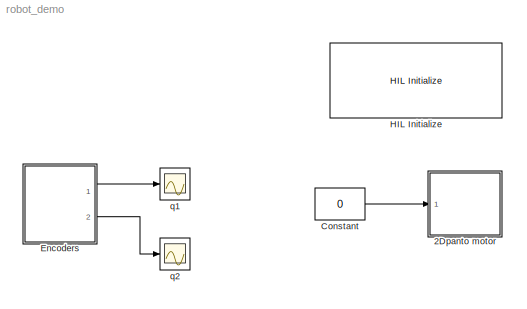
MODEL robot_demo
KIND model
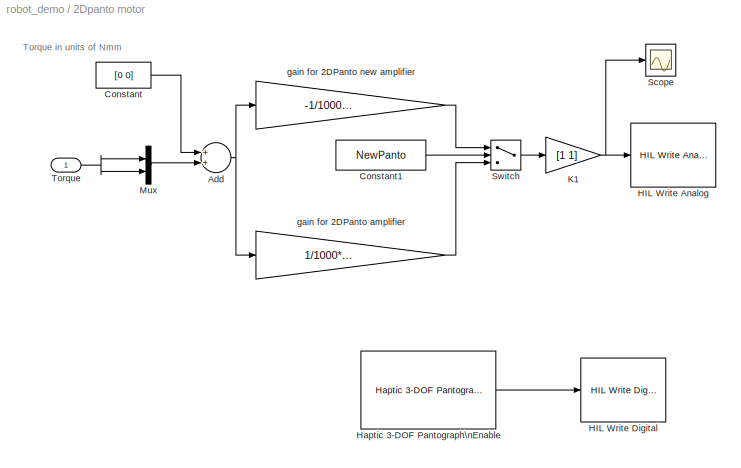
BLOCK [SubSystem] 2Dpanto motor
  FunctionWithSeparateData = off
  MaskHideContents = off
  MinAlgLoopOccurrences = off
  Opaque = off
  Ports = [1]
  PropExecContextOutsideSubsystem = off
  RTWSystemCode = Auto
  RequestExecContextInheritance = off
  SID = 1
BLOCK [Sum] 2Dpanto motor/Add
  InputSameDT = off
  OutDataTypeStr = Inherit: Inherit via internal rule
  Ports = [2, 1]
  SID = 4
  SaturateOnIntegerOverflow = off
BLOCK [Constant] 2Dpanto motor/Constant
  SID = 5
  Value = [0 0]
BLOCK [Constant] 2Dpanto motor/Constant1
  SID = 6
  Value = NewPanto
BLOCK [Reference] 2Dpanto motor/HIL Write Analog  REF=quarc_library/Data Acquisition/Generic/Immediate I//O/HIL Write Analog
  AttributesFormatString = (%<object_name>)
  Ports = [1]
  SID = 7
  SourceBlock = quarc_library/Data Acquisition/Generic/Immediate I//O/HIL Write Analog
  SourceType = HIL Write Analog
  UserData = DataTag0
  UserDataPersistent = on
  active = off
  channels = 0:1
  object_name = HIL-2
  sample_time = -1
  vector_input = on
BLOCK [Reference] 2Dpanto motor/HIL Write Digital  REF=quarc_library/Data Acquisition/Generic/Immediate I//O/HIL Write Digital
  AttributesFormatString = (%<object_name>)
  Ports = [1]
  SID = 61
  SourceBlock = quarc_library/Data Acquisition/Generic/Immediate I//O/HIL Write Digital
  SourceType = HIL Write Digital
  UserData = DataTag1
  UserDataPersistent = on
  active = off
  channels = 0:3
  object_name = HIL-2
  sample_time = -1
  vector_input = on
BLOCK [Reference] 2Dpanto motor/Haptic 3-DOF Pantograph\nEnable  REF=quarc_library/Devices/Quanser/Haptics/Pantographs/Haptic 3-DOF\nPlanar Pantograph/Interfacing/Haptic 3-DOF Pantograph\nEnable
  Ports = [0, 1]
  SID = 62
  SourceBlock = quarc_library/Devices/Quanser/Haptics/Pantographs/Haptic 3-DOF\nPlanar Pantograph/Interfacing/Haptic 3-DOF Pantograph\nEnable
  SourceType = Haptic 3-DOF Pantograph Enable
BLOCK [Gain] 2Dpanto motor/K1
  Gain = [1 1]
  OutDataTypeStr = Inherit: Inherit via internal rule
  ParamDataTypeStr = Inherit: Inherit via internal rule
  SID = 8
  SaturateOnIntegerOverflow = off
BLOCK [Mux] 2Dpanto motor/Mux
  DisplayOption = bar
  Inputs = 2
  Ports = [2, 1]
  SID = 58
BLOCK [Scope] 2Dpanto motor/Scope
  DataFormat = StructureWithTime
  Floating = off
  NumInputPorts = 1
  Ports = [1]
  SID = 63
  SampleTime = 0
  SaveName = ScopeData2
BLOCK [Switch] 2Dpanto motor/Switch
  Criteria = u2 > Threshold
  InputSameDT = off
  SID = 10
  SaturateOnIntegerOverflow = off
BLOCK [Inport] 2Dpanto motor/Torque
  IconDisplay = Port number
  SID = 2
BLOCK [Gain] 2Dpanto motor/gain for 2DPanto amplifier
  Gain = 1/1000*2.17/4.9
  OutDataTypeStr = Inherit: Inherit via internal rule
  ParamDataTypeStr = Inherit: Inherit via internal rule
  SID = 12
  SaturateOnIntegerOverflow = off
BLOCK [Gain] 2Dpanto motor/gain for 2DPanto new amplifier
  Gain = -1/1000*4*2.17/4.9
  OutDataTypeStr = Inherit: Inherit via internal rule
  ParamDataTypeStr = Inherit: Inherit via internal rule
  SID = 13
  SaturateOnIntegerOverflow = off
BLOCK [Constant] Constant
  SID = 14
  Value = 0
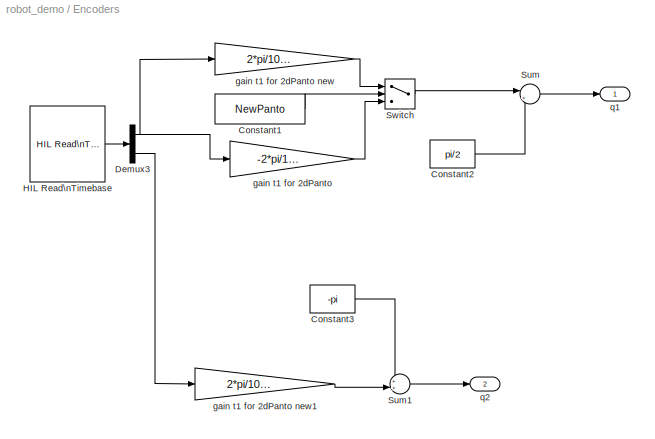
BLOCK [SubSystem] Encoders
  FunctionWithSeparateData = off
  MaskHideContents = off
  MinAlgLoopOccurrences = off
  Opaque = off
  Ports = [0, 2]
  PropExecContextOutsideSubsystem = off
  RTWSystemCode = Auto
  RequestExecContextInheritance = off
  SID = 16
BLOCK [Constant] Encoders/Constant1
  SID = 19
  Value = NewPanto
BLOCK [Constant] Encoders/Constant2
  SID = 68
  Value = pi/2
BLOCK [Constant] Encoders/Constant3
  SID = 70
  Value = -pi
BLOCK [Demux] Encoders/Demux3
  DisplayOption = bar
  Outputs = 3
  Ports = [1, 3]
  SID = 21
BLOCK [Reference] Encoders/HIL Read\nTimebase  REF=quarc_library/Data Acquisition/Generic/Timebases/HIL Read\nTimebase
  AttributesFormatString = (%<object_name>)
  Ports = [0, 1]
  SID = 22
  SourceBlock = quarc_library/Data Acquisition/Generic/Timebases/HIL Read\nTimebase
  SourceType = HIL Read Timebase
  UserData = DataTag2
  UserDataPersistent = on
  active = on
  analog_channels = []
  clock = 0
  data_type_mode = Inherit via back propagation
  digital_channels = []
  digital_data_type = boolean
  encoder_channels = [0:2]
  encoder_data_type = double
  object_name = HIL-2
  other_channels = []
  samples_in_buffer = max(ceil(1/qc_get_step_size), 1)
  vector_output = on
BLOCK [Sum] Encoders/Sum
  IconShape = round
  InputSameDT = off
  Inputs = |++
  OutDataTypeStr = Inherit: Inherit via internal rule
  Ports = [2, 1]
  SID = 67
  SaturateOnIntegerOverflow = off
BLOCK [Sum] Encoders/Sum1
  IconShape = round
  InputSameDT = off
  Inputs = ++|
  OutDataTypeStr = Inherit: Inherit via internal rule
  Ports = [2, 1]
  SID = 69
  SaturateOnIntegerOverflow = off
BLOCK [Switch] Encoders/Switch
  Criteria = u2 > Threshold
  InputSameDT = off
  SID = 25
  SaturateOnIntegerOverflow = off
BLOCK [Gain] Encoders/gain t1 for 2dPanto
  Gain = -2*pi/1024/75
  OutDataTypeStr = Inherit: Inherit via internal rule
  ParamDataTypeStr = Inherit: Inherit via internal rule
  SID = 27
  SaturateOnIntegerOverflow = off
BLOCK [Gain] Encoders/gain t1 for 2dPanto new
  Gain = 2*pi/1024/75
  OutDataTypeStr = Inherit: Inherit via internal rule
  ParamDataTypeStr = Inherit: Inherit via internal rule
  SID = 28
  SaturateOnIntegerOverflow = off
BLOCK [Gain] Encoders/gain t1 for 2dPanto new1
  Gain = 2*pi/1000/10
  OutDataTypeStr = Inherit: Inherit via internal rule
  ParamDataTypeStr = Inherit: Inherit via internal rule
  SID = 66
  SaturateOnIntegerOverflow = off
BLOCK [Outport] Encoders/q1
  IconDisplay = Port number
  SID = 37
BLOCK [Outport] Encoders/q2
  IconDisplay = Port number
  Port = 2
  SID = 38
BLOCK [Reference] HIL Initialize  REF=quarc_library/Data Acquisition/Generic/Configuration/HIL Initialize
  AttributesFormatString = %<object_name> (%<board_type>-%<board_number>)
  Ports = []
  SID = 39
  SourceBlock = quarc_library/Data Acquisition/Generic/Configuration/HIL Initialize
  SourceType = HIL Initialize
  UserData = DataTag3
  UserDataPersistent = on
  active = on
  analog_input_channels = [0:3]
  analog_input_maximums = 10
  analog_input_minimums = -10
  analog_output_channels = [0:3]
  analog_output_maximums = [10]
  analog_output_minimums = [-10]
  board_number = 0
  board_type = q4
  clock_modes = [0 0]
  digital_input_channels = []
  digital_output_channels = [0:3]
  digital_output_configuration = []
  encoder_channels = [0:3]
  encoder_filter_frequency = (1/60e-9)/1
  exclusive = off
  final_analog_outputs = [0]
  final_digital_outputs = [1]
  final_other_outputs = []
  final_pwm_outputs = [0]
  hardware_clocks = [0:1]
  initial_analog_outputs = [0]
  initial_clock_frequencies = []
  initial_digital_outputs = [1]
  initial_encoder_counts = [0]
  initial_other_outputs = []
  initial_pwm_outputs = [0]
  object_name = HIL-2
  other_output_channels = []
  pwm_alignment = []
  pwm_channels = []
  pwm_configuration = []
  pwm_frequency = (1/60e-9)/1024
  pwm_leading_deadband = []
  pwm_modes = [0]
  pwm_polarity = []
  pwm_trailing_deadband = []
  quadrature = [4]
  set_analog_input_params_at_start = off
  set_analog_input_params_at_switch_in = off
  set_analog_output_params_at_start = on
  set_analog_output_params_at_switch_in = off
  set_analog_outputs_at_start = on
  set_analog_outputs_at_switch_in = off
  set_analog_outputs_at_switch_out = off
  set_analog_outputs_at_terminate = on
  set_analog_outputs_on_watchdog = off
  set_clock_frequencies_at_start = off
  set_clock_frequencies_at_switch_in = off
  set_clock_params_at_start = on
  set_clock_params_at_switch_in = off
  set_digital_output_params_at_start = off
  set_digital_output_params_at_switch_in = off
  set_digital_outputs_at_start = on
  set_digital_outputs_at_switch_in = off
  set_digital_outputs_at_switch_out = off
  set_digital_outputs_at_terminate = on
  set_digital_outputs_on_watchdog = off
  set_encoder_counts_at_start = on
  set_encoder_counts_at_switch_in = off
  set_encoder_params_at_start = on
  set_encoder_params_at_switch_in = off
  set_other_outputs_at_start = off
  set_other_outputs_at_switch_in = off
  set_other_outputs_at_switch_out = off
  set_other_outputs_at_terminate = off
  set_other_outputs_on_watchdog = off
  set_pwm_outputs_at_start = on
  set_pwm_outputs_at_switch_in = off
  set_pwm_outputs_at_switch_out = off
  set_pwm_outputs_at_terminate = on
  set_pwm_outputs_on_watchdog = off
  set_pwm_params_at_start = on
  set_pwm_params_at_switch_in = off
  watchdog_analog_outputs = 0
  watchdog_digital_outputs = [2]
  watchdog_other_outputs = []
  watchdog_pwm_outputs = []
BLOCK [Scope] q1
  DataFormat = StructureWithTime
  Floating = off
  NumInputPorts = 1
  Ports = [1]
  SID = 59
  SampleTime = 0
  YMax = 3.5
  YMin = -0.25
BLOCK [Scope] q2
  DataFormat = StructureWithTime
  Floating = off
  NumInputPorts = 1
  Ports = [1]
  SID = 60
  SampleTime = 0
  SaveName = ScopeData1
  YMax = 0
  YMin = -3.25
  ZoomMode = yonly
ANNOTATION 2Dpanto motor: Torque in units of Nmm
NET 2Dpanto motor/Add:1 -> 2Dpanto motor/gain for 2DPanto amplifier:1, 2Dpanto motor/gain for 2DPanto new amplifier:1
LINE 2Dpanto motor/Constant1:1 -> 2Dpanto motor/Switch:2
LINE 2Dpanto motor/Constant:1 -> 2Dpanto motor/Add:1
LINE 2Dpanto motor/Haptic 3-DOF Pantograph\nEnable:1 -> 2Dpanto motor/HIL Write Digital:1
NET 2Dpanto motor/K1:1 -> 2Dpanto motor/HIL Write Analog:1, 2Dpanto motor/Scope:1
LINE 2Dpanto motor/Mux:1 -> 2Dpanto motor/Add:2
LINE 2Dpanto motor/Switch:1 -> 2Dpanto motor/K1:1
NET 2Dpanto motor/Torque:1 -> 2Dpanto motor/Mux:1, 2Dpanto motor/Mux:2
LINE 2Dpanto motor/gain for 2DPanto amplifier:1 -> 2Dpanto motor/Switch:3
LINE 2Dpanto motor/gain for 2DPanto new amplifier:1 -> 2Dpanto motor/Switch:1
LINE Constant:1 -> 2Dpanto motor:1
LINE Encoders/Constant1:1 -> Encoders/Switch:2
LINE Encoders/Constant2:1 -> Encoders/Sum:2
LINE Encoders/Constant3:1 -> Encoders/Sum1:1
NET Encoders/Demux3:1 -> Encoders/gain t1 for 2dPanto new:1, Encoders/gain t1 for 2dPanto:1
LINE Encoders/Demux3:3 -> Encoders/gain t1 for 2dPanto new1:1
LINE Encoders/HIL Read\nTimebase:1 -> Encoders/Demux3:1
LINE Encoders/Sum1:1 -> Encoders/q2:1
LINE Encoders/Sum:1 -> Encoders/q1:1
LINE Encoders/Switch:1 -> Encoders/Sum:1
LINE Encoders/gain t1 for 2dPanto new1:1 -> Encoders/Sum1:2
LINE Encoders/gain t1 for 2dPanto new:1 -> Encoders/Switch:1
LINE Encoders/gain t1 for 2dPanto:1 -> Encoders/Switch:3
LINE Encoders:1 -> q1:1
LINE Encoders:2 -> q2:1
note: NET lines group one-source signal fan-out (src -> all destinations, sorted); 1:1 wires keep LINE
